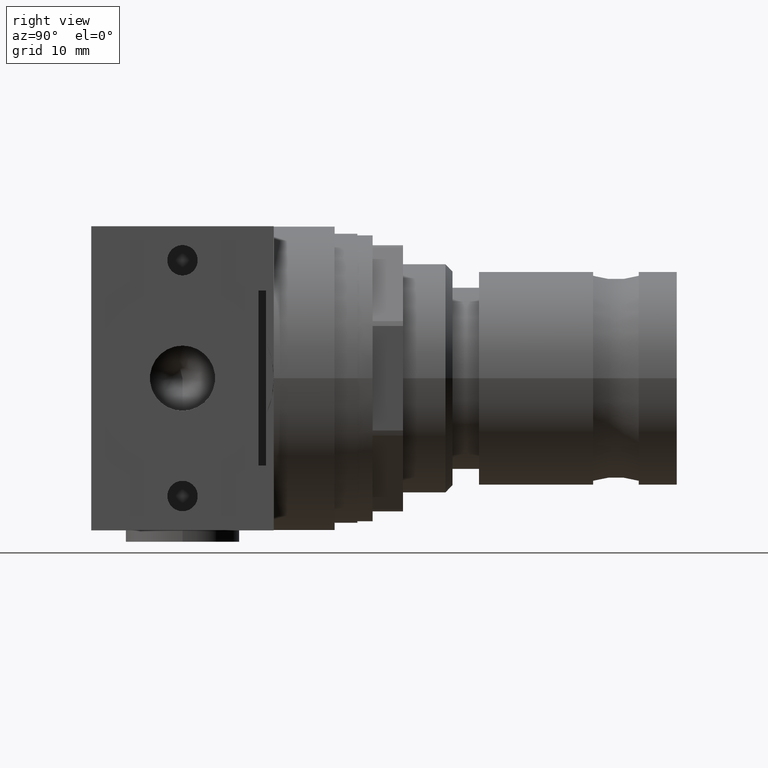
[diagram: clean part render]
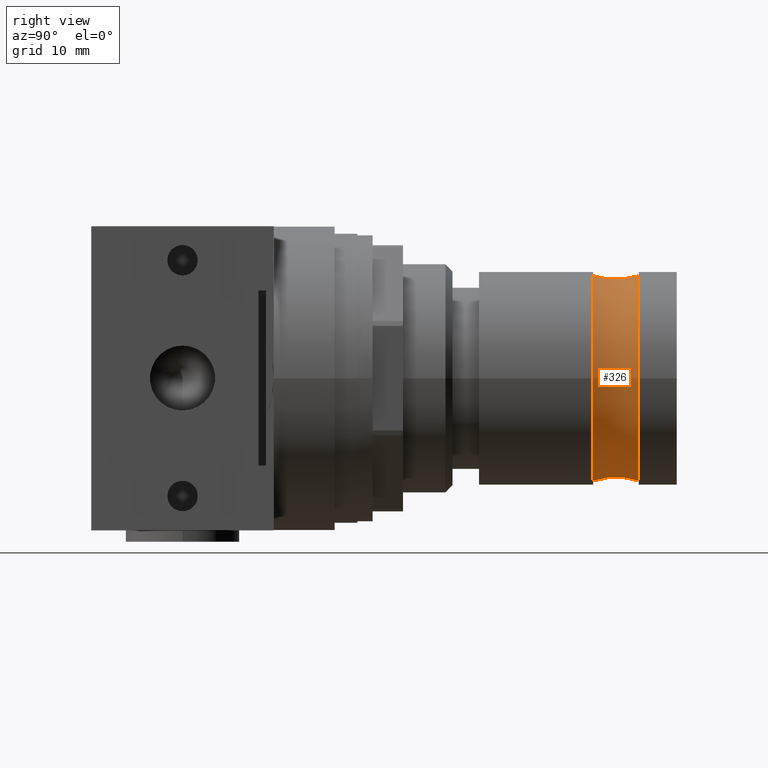
[diagram: same view with one face highlighted and labeled with its STEP entity id]
A machine part, right view. The second image highlights one B-rep face of the part: STEP entity #326.
In plain terms, the highlighted toroidal blend (fillet) surface has major radius 23.0394 mm and minor (blend) radius 10 mm.
Its self-contained STEP definition (entity closure, byte-faithful):
#326 = ADVANCED_FACE( '', ( #700, #701 ), #702, .F. );
#700 = FACE_OUTER_BOUND( '', #1145, .T. );
#701 = FACE_OUTER_BOUND( '', #1146, .T. );
#702 = TOROIDAL_SURFACE( '', #1147, 23.0393920141694, 9.99999999999998 );
#1145 = EDGE_LOOP( '', ( #1836 ) );
#1146 = EDGE_LOOP( '', ( #1837 ) );
#1147 = AXIS2_PLACEMENT_3D( '', #1838, #1839, #1840 );
#1836 = ORIENTED_EDGE( '', *, *, #2546, .F. );
#1837 = ORIENTED_EDGE( '', *, *, #2620, .T. );
#1838 = CARTESIAN_POINT( '', ( 37.0000000000000, 0.000000000000000, 0.000000000000000 ) );
#1839 = DIRECTION( '', ( 1.00000000000000, 0.000000000000000, -0.000000000000000 ) );
#1840 = DIRECTION( '', ( -0.000000000000000, 0.000000000000000, -1.00000000000000 ) );
#2546 = EDGE_CURVE( '', #3024, #3024, #3025, .T. );
#2620 = EDGE_CURVE( '', #3144, #3144, #3145, .T. );
#3024 = VERTEX_POINT( '', #3666 );
#3025 = CIRCLE( '', #3667, 13.5000000000000 );
#3144 = VERTEX_POINT( '', #3812 );
#3145 = CIRCLE( '', #3813, 13.5000000000000 );
#3666 = CARTESIAN_POINT( '', ( 40.0000000000000, 0.000000000000000, -13.5000000000000 ) );
#3667 = AXIS2_PLACEMENT_3D( '', #4285, #4286, #4287 );
#3812 = CARTESIAN_POINT( '', ( 34.0000000000000, 0.000000000000000, -13.5000000000000 ) );
#3813 = AXIS2_PLACEMENT_3D( '', #4401, #4402, #4403 );
#4285 = CARTESIAN_POINT( '', ( 40.0000000000000, 0.000000000000000, 0.000000000000000 ) );
#4286 = DIRECTION( '', ( 1.00000000000000, 0.000000000000000, -0.000000000000000 ) );
#4287 = DIRECTION( '', ( -0.000000000000000, 0.000000000000000, -1.00000000000000 ) );
#4401 = CARTESIAN_POINT( '', ( 34.0000000000000, 0.000000000000000, 0.000000000000000 ) );
#4402 = DIRECTION( '', ( 1.00000000000000, 0.000000000000000, -0.000000000000000 ) );
#4403 = DIRECTION( '', ( -0.000000000000000, 0.000000000000000, -1.00000000000000 ) );